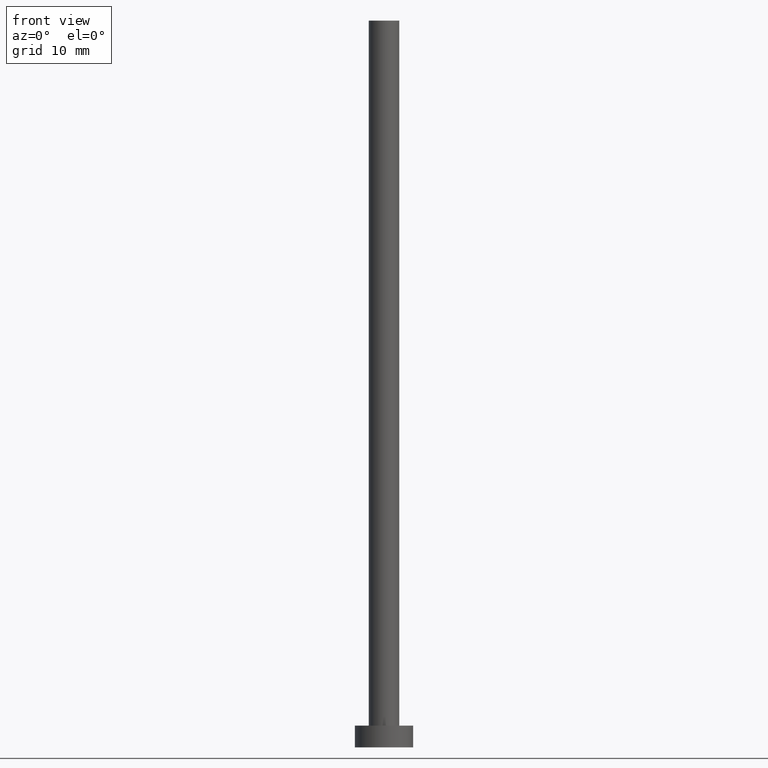
[diagram: clean part render]
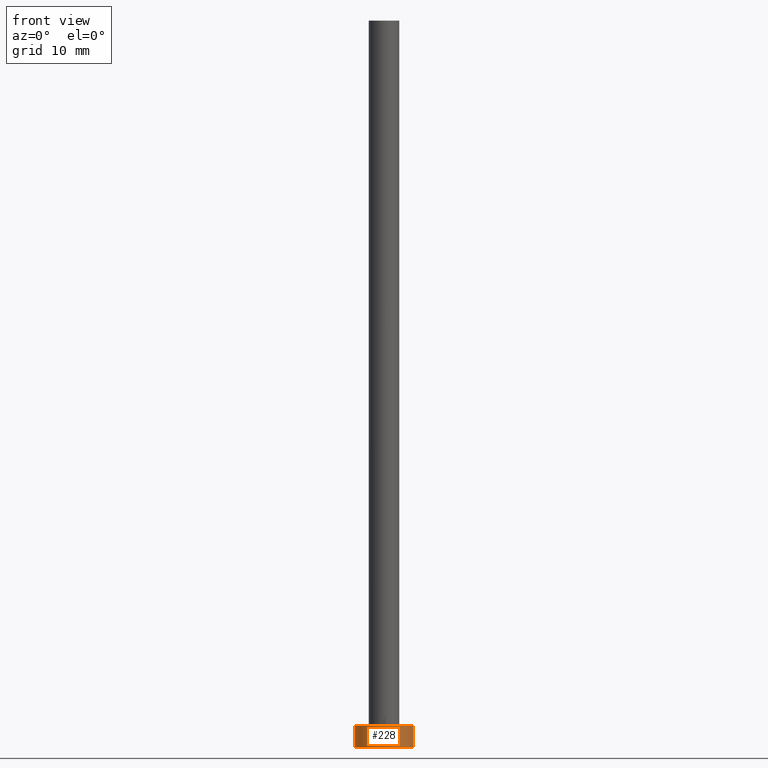
[diagram: same view with one face highlighted and labeled with its STEP entity id]
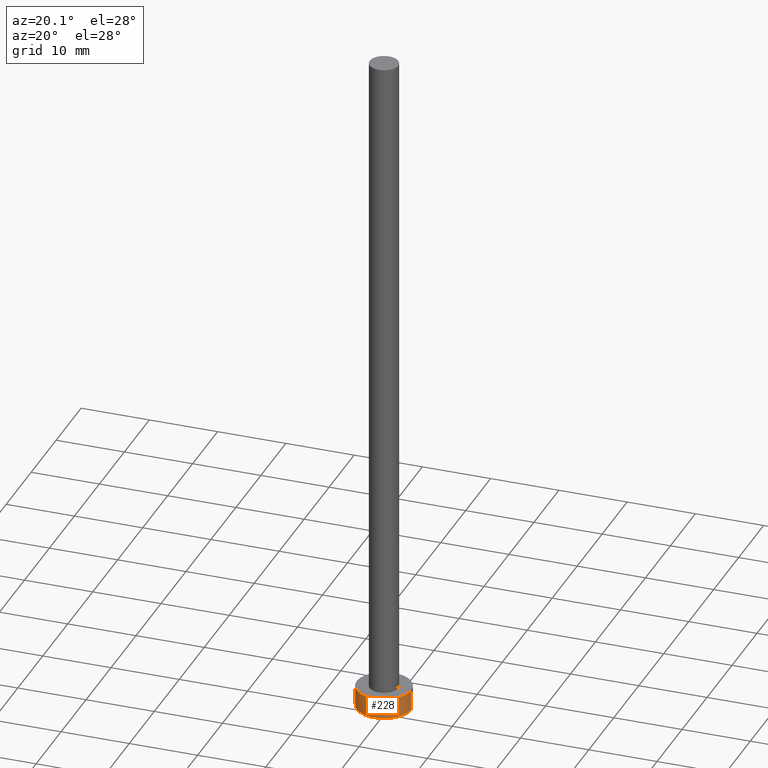
[diagram: same view with one face highlighted and labeled with its STEP entity id]
A machine part, front view. The second image highlights one B-rep face of the part: STEP entity #228.
A second angle (auxiliary view) of the same face is appended — the face is thin or edge-on in the first view.
In plain terms, the highlighted cylindrical surface (edge-blend (fillet) strip) has radius 4 mm, axis along (-0, -0, -1).
Its self-contained STEP definition (entity closure, byte-faithful):
#7 = CARTESIAN_POINT ( 'NONE',  ( -4.000000000000000000, 0.000000000000000000, 3.000000000000000000 ) ) ;
#10 = ORIENTED_EDGE ( 'NONE', *, *, #180, .F. ) ;
#21 = LINE ( 'NONE', #86, #237 ) ;
#24 = CARTESIAN_POINT ( 'NONE',  ( -4.000000000000000000, 0.000000000000000000, 3.000000000000000000 ) ) ;
#27 = VERTEX_POINT ( 'NONE', #221 ) ;
#51 = CIRCLE ( 'NONE', #142, 4.000000000000000000 ) ;
#53 = DIRECTION ( 'NONE',  ( 0.000000000000000000, 0.000000000000000000, 1.000000000000000000 ) ) ;
#55 = DIRECTION ( 'NONE',  ( 1.000000000000000000, 0.000000000000000000, 0.000000000000000000 ) ) ;
#58 = DIRECTION ( 'NONE',  ( 1.000000000000000000, 0.000000000000000000, 0.000000000000000000 ) ) ;
#63 = DIRECTION ( 'NONE',  ( -0.000000000000000000, -0.000000000000000000, -1.000000000000000000 ) ) ;
#77 = CARTESIAN_POINT ( 'NONE',  ( 4.000000000000000000, 4.898587196589412829E-16, 3.000000000000000000 ) ) ;
#81 = EDGE_CURVE ( 'NONE', #27, #247, #186, .T. ) ;
#82 = CARTESIAN_POINT ( 'NONE',  ( 0.000000000000000000, 0.000000000000000000, 3.000000000000000000 ) ) ;
#86 = CARTESIAN_POINT ( 'NONE',  ( 4.000000000000000000, 4.898587196589412829E-16, 3.000000000000000000 ) ) ;
#118 = DIRECTION ( 'NONE',  ( 0.000000000000000000, 0.000000000000000000, 1.000000000000000000 ) ) ;
#127 = CARTESIAN_POINT ( 'NONE',  ( 0.000000000000000000, 0.000000000000000000, 0.000000000000000000 ) ) ;
#131 = DIRECTION ( 'NONE',  ( -1.000000000000000000, 0.000000000000000000, 0.000000000000000000 ) ) ;
#137 = VERTEX_POINT ( 'NONE', #77 ) ;
#142 = AXIS2_PLACEMENT_3D ( 'NONE', #199, #118, #58 ) ;
#156 = EDGE_LOOP ( 'NONE', ( #158, #10, #242, #244 ) ) ;
#157 = LINE ( 'NONE', #7, #188 ) ;
#158 = ORIENTED_EDGE ( 'NONE', *, *, #209, .F. ) ;
#159 = FACE_OUTER_BOUND ( 'NONE', #156, .T. ) ;
#172 = DIRECTION ( 'NONE',  ( -0.000000000000000000, -0.000000000000000000, -1.000000000000000000 ) ) ;
#174 = AXIS2_PLACEMENT_3D ( 'NONE', #82, #63, #131 ) ;
#180 = EDGE_CURVE ( 'NONE', #200, #137, #51, .T. ) ;
#186 = CIRCLE ( 'NONE', #227, 4.000000000000000000 ) ;
#188 = VECTOR ( 'NONE', #195, 1000.000000000000000 ) ;
#195 = DIRECTION ( 'NONE',  ( -0.000000000000000000, -0.000000000000000000, -1.000000000000000000 ) ) ;
#199 = CARTESIAN_POINT ( 'NONE',  ( 0.000000000000000000, 0.000000000000000000, 3.000000000000000000 ) ) ;
#200 = VERTEX_POINT ( 'NONE', #24 ) ;
#206 = EDGE_CURVE ( 'NONE', #200, #27, #157, .T. ) ;
#209 = EDGE_CURVE ( 'NONE', #137, #247, #21, .T. ) ;
#221 = CARTESIAN_POINT ( 'NONE',  ( -4.000000000000000000, 0.000000000000000000, 0.000000000000000000 ) ) ;
#224 = CARTESIAN_POINT ( 'NONE',  ( 4.000000000000000000, 4.898587196589412829E-16, 0.000000000000000000 ) ) ;
#227 = AXIS2_PLACEMENT_3D ( 'NONE', #127, #53, #55 ) ;
#228 = ADVANCED_FACE ( 'NONE', ( #159 ), #246, .T. ) ;
#237 = VECTOR ( 'NONE', #172, 1000.000000000000000 ) ;
#242 = ORIENTED_EDGE ( 'NONE', *, *, #206, .T. ) ;
#244 = ORIENTED_EDGE ( 'NONE', *, *, #81, .T. ) ;
#246 = CYLINDRICAL_SURFACE ( 'NONE', #174, 4.000000000000000000 ) ;
#247 = VERTEX_POINT ( 'NONE', #224 ) ;